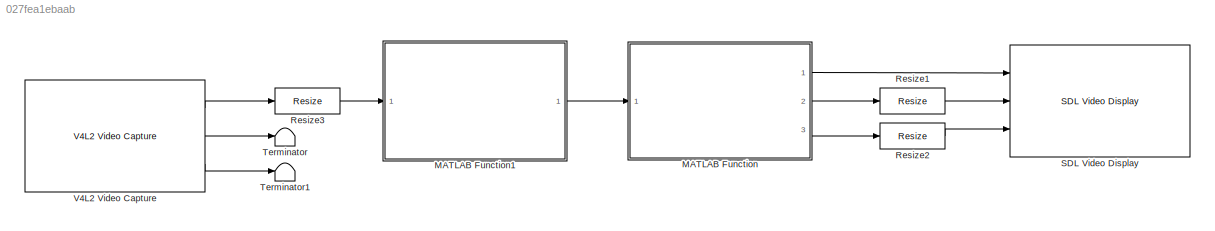
MODEL slx_027fea1ebaab
KIND model
CONFIG AbsTol = auto
CONFIG EnableMultiTasking = on
CONFIG FixedStep = auto
CONFIG MaxStep = auto
CONFIG MinStep = auto
CONFIG RelTol = 1e-3
CONFIG SampleTimeConstraint = Unconstrained
CONFIG Solver = FixedStepAuto
CONFIG SolverName = FixedStepAuto
CONFIG StartTime = 0.0
CONFIG StopTime = inf
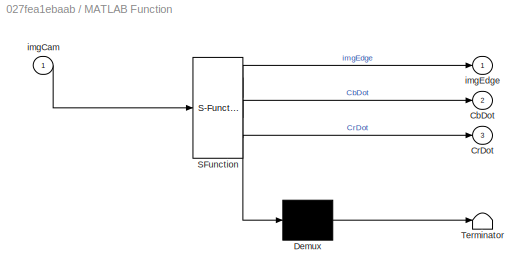
BLOCK [SubSystem] MATLAB Function
  ErrorFcn = Stateflow.Translate.translate
  PermitHierarchicalResolution = ExplicitOnly
  Ports = [1, 3]
  RequestExecContextInheritance = off
  SFBlockType = MATLAB Function
  TreatAsAtomicUnit = on
BLOCK [Demux] MATLAB Function/ Demux 
  Outputs = 1
  Ports = [1, 1]
BLOCK [S-Function] MATLAB Function/ SFunction 
  EnableBusSupport = on
  FunctionName = sf_sfun
  PortCounts = [1 4]
  Ports = [1, 4]
  SFcnIsStateOwnerBlock = off
  SFunctionDeploymentMode = off
  Tag = Stateflow S-Function lanedetection 2
BLOCK [Terminator] MATLAB Function/ Terminator 
BLOCK [Outport] MATLAB Function/CbDot
  IconDisplay = Port number
  Port = 2
BLOCK [Outport] MATLAB Function/CrDot
  IconDisplay = Port number
  Port = 3
BLOCK [Inport] MATLAB Function/imgCam 
  IconDisplay = Port number
BLOCK [Outport] MATLAB Function/imgEdge
  IconDisplay = Port number
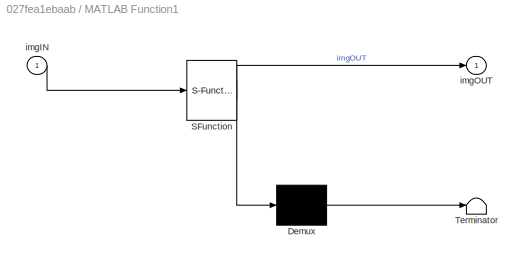
BLOCK [SubSystem] MATLAB Function1
  ErrorFcn = Stateflow.Translate.translate
  PermitHierarchicalResolution = ExplicitOnly
  Ports = [1, 1]
  RequestExecContextInheritance = off
  SFBlockType = MATLAB Function
  TreatAsAtomicUnit = on
BLOCK [Demux] MATLAB Function1/ Demux 
  Outputs = 1
  Ports = [1, 1]
BLOCK [S-Function] MATLAB Function1/ SFunction 
  EnableBusSupport = on
  FunctionName = sf_sfun
  PortCounts = [1 2]
  Ports = [1, 2]
  SFcnIsStateOwnerBlock = off
  SFunctionDeploymentMode = off
  Tag = Stateflow S-Function lanedetection 1
BLOCK [Terminator] MATLAB Function1/ Terminator 
BLOCK [Inport] MATLAB Function1/imgIN
  IconDisplay = Port number
BLOCK [Outport] MATLAB Function1/imgOUT
  IconDisplay = Port number
BLOCK [Reference] Resize1  REF=visiongeotforms/Resize
  Ports = [1, 1]
  SourceBlock = visiongeotforms/Resize
  SourceProductBaseCode = VP
  SourceProductName = Computer Vision System Toolbox
  SourceType = Resize
BLOCK [Reference] Resize2  REF=visiongeotforms/Resize
  Ports = [1, 1]
  SourceBlock = visiongeotforms/Resize
  SourceProductBaseCode = VP
  SourceProductName = Computer Vision System Toolbox
  SourceType = Resize
BLOCK [Reference] Resize3  REF=visiongeotforms/Resize
  Ports = [1, 1]
  SourceBlock = visiongeotforms/Resize
  SourceProductBaseCode = VP
  SourceProductName = Computer Vision System Toolbox
  SourceType = Resize
BLOCK [Reference] SDL Video Display  REF=embdlinuxlib/SDL Video Display
  Ports = [3]
  SourceBlock = embdlinuxlib/SDL Video Display
  SourceProductBaseCode = RASPPI
  SourceProductName = Simulink Support Package for Raspberry Pi Hardware
  SourceType = SDL Video Display
BLOCK [Terminator] Terminator
BLOCK [Terminator] Terminator1
BLOCK [Reference] V4L2 Video Capture  REF=embdlinuxlib/V4L2 Video Capture
  Ports = [0, 3]
  SourceBlock = embdlinuxlib/V4L2 Video Capture
  SourceProductBaseCode = RASPPI
  SourceProductName = Simulink Support Package for Raspberry Pi Hardware
  SourceType = V4L2 Video Capture
LINE MATLAB Function1:1 -> MATLAB Function:1
LINE MATLAB Function:1 -> SDL Video Display:1
LINE MATLAB Function:2 -> Resize1:1
LINE MATLAB Function:3 -> Resize2:1
LINE Resize1:1 -> SDL Video Display:2
LINE Resize2:1 -> SDL Video Display:3
LINE Resize3:1 -> MATLAB Function1:1
LINE V4L2 Video Capture:1 -> Resize3:1
LINE V4L2 Video Capture:2 -> Terminator:1
LINE V4L2 Video Capture:3 -> Terminator1:1
CHART MATLAB Function1 states=1 transitions=1
  STATE_LABEL 'eML_blk_kernel()'
  STATE_LABEL "SCRIPT:\nfunction imgOUT   = imgROI(imgIN)\n\n    % imgIN Array von 160x120\n    % rectangle('Position',[x,y,w,h])\n    \n    imgOUT = imgIN(1:160,66:95);\n\nend"
CHART MATLAB Function states=1 transitions=1
  STATE_LABEL 'eML_blk_kernel()'
  STATE_LABEL "SCRIPT:\nfunction [imgEdge, CbDot, CrDot]  = lanedetection(imgCam)\n\n    threshold = 40;\n    \n    % convert to grayscale\n    % imgGray = rgb2gray(imgCam);\n\n    % create laplacian filter\n    k = [1 2 1; 0 0 0; -1 -2 -1];\n    % run sobel\n    V = conv2(double(imgCam),k','same');\n    \n    % filter edges\n    imgEdges = uint8((V > threshold) * 255);\n    \n    % coordinates of all detected objects\n    [x, y...<+828ch>"
